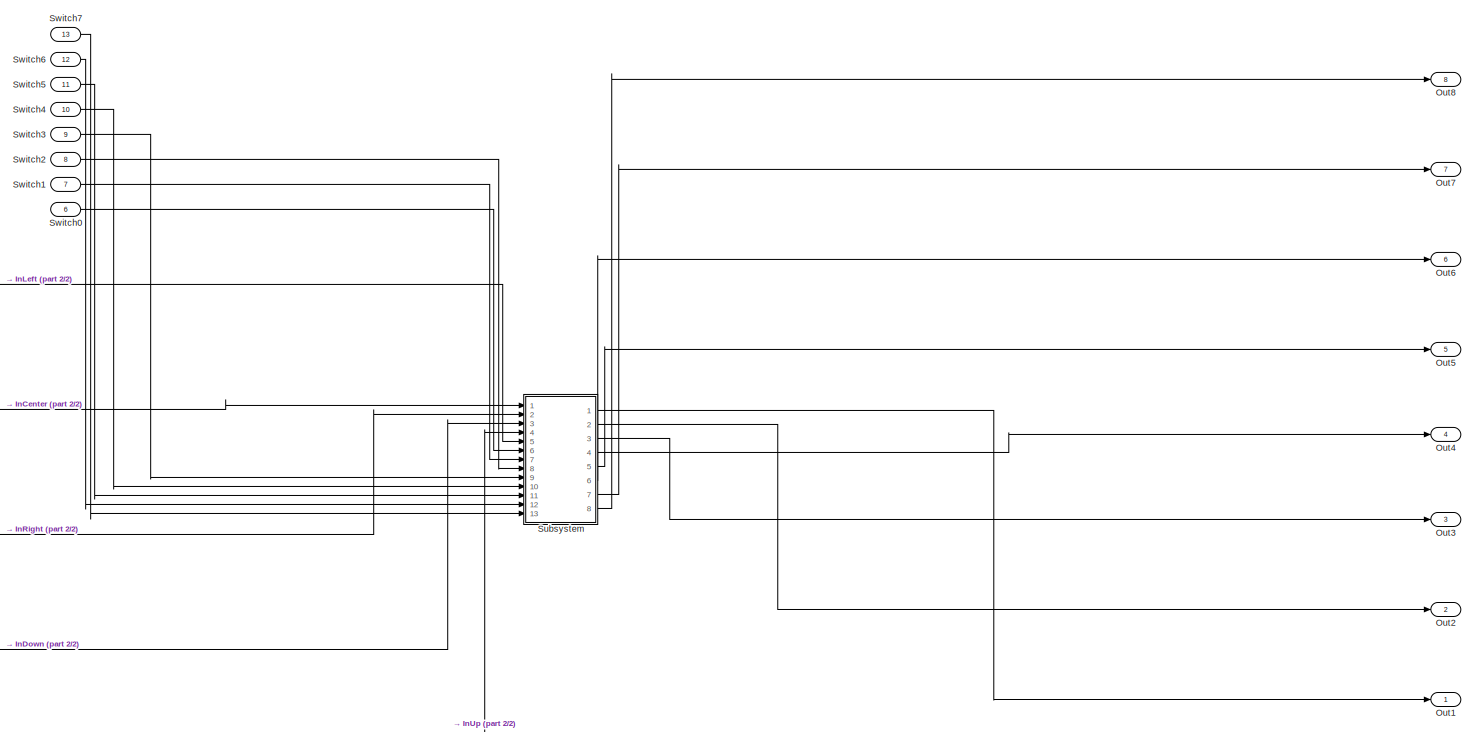
[diagram: root canvas - part 1/2, most of the canvas]
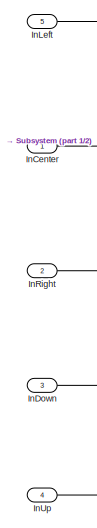
[diagram: root canvas - part 2/2, bottom left region]
MODEL slx_cdc9662e9512
KIND model
BLOCK [Inport] InCenter
  IconDisplay = Port number
BLOCK [Inport] InDown
  IconDisplay = Port number
  Port = 3
BLOCK [Inport] InLeft
  IconDisplay = Port number
  Port = 5
BLOCK [Inport] InRight
  IconDisplay = Port number
  Port = 2
BLOCK [Inport] InUp
  IconDisplay = Port number
  Port = 4
BLOCK [Outport] Out1
  IconDisplay = Port number
BLOCK [Outport] Out2
  IconDisplay = Port number
  Port = 2
BLOCK [Outport] Out3
  IconDisplay = Port number
  Port = 3
BLOCK [Outport] Out4
  IconDisplay = Port number
  Port = 4
BLOCK [Outport] Out5
  IconDisplay = Port number
  Port = 5
BLOCK [Outport] Out6
  IconDisplay = Port number
  Port = 6
BLOCK [Outport] Out7
  IconDisplay = Port number
  Port = 7
BLOCK [Outport] Out8
  IconDisplay = Port number
  Port = 8
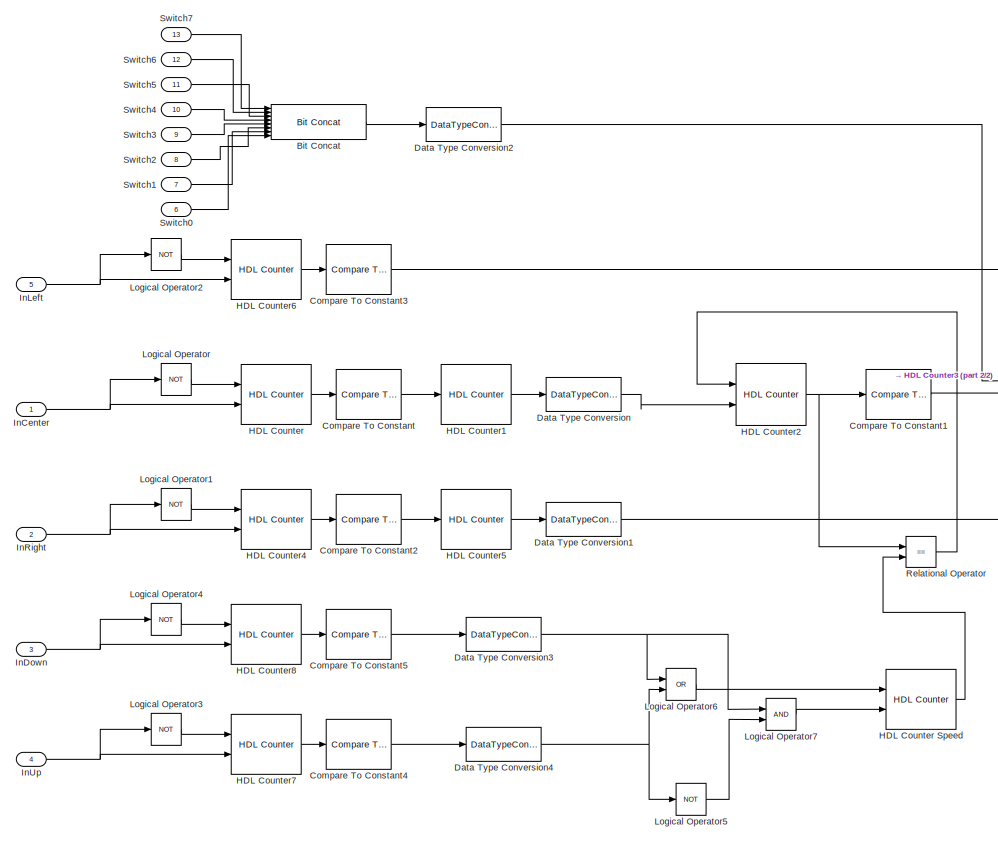
[diagram: Subsystem - part 1/2, left side, full height]
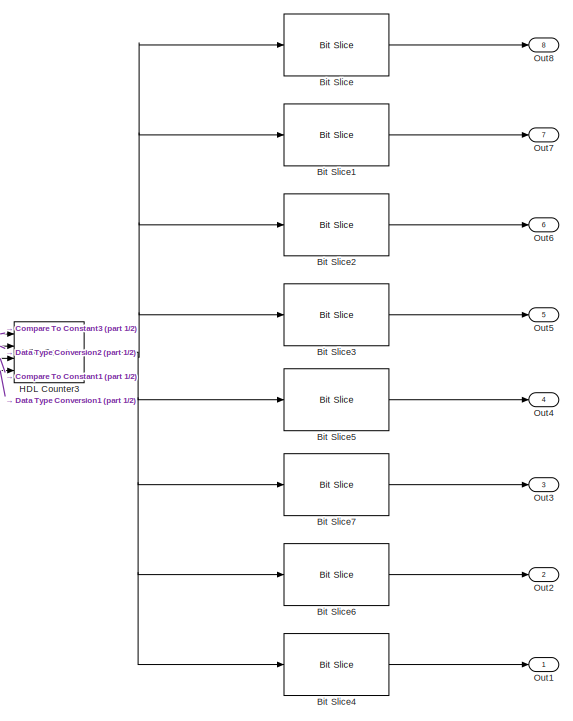
[diagram: Subsystem - part 2/2, right side, full height]
BLOCK [SubSystem] Subsystem
  Ports = [13, 8]
  RequestExecContextInheritance = off
  TreatAsAtomicUnit = on
BLOCK [Reference] Subsystem/Bit Concat  REF=hdlsllib/HDL Operations/Bit Concat
  Ports = [8, 1]
  SourceBlock = hdlsllib/HDL Operations/Bit Concat
  SourceType = Bit Concat
  numInputs = 8
BLOCK [Reference] Subsystem/Bit Slice  REF=hdlsllib/HDL Operations/Bit Slice
  Ports = [1, 1]
  SourceBlock = hdlsllib/HDL Operations/Bit Slice
  SourceType = Bit Slice
  lidx = 7
  ridx = 7
BLOCK [Reference] Subsystem/Bit Slice1  REF=hdlsllib/HDL Operations/Bit Slice
  Ports = [1, 1]
  SourceBlock = hdlsllib/HDL Operations/Bit Slice
  SourceType = Bit Slice
  lidx = 6
  ridx = 6
BLOCK [Reference] Subsystem/Bit Slice2  REF=hdlsllib/HDL Operations/Bit Slice
  Ports = [1, 1]
  SourceBlock = hdlsllib/HDL Operations/Bit Slice
  SourceType = Bit Slice
  lidx = 5
  ridx = 5
BLOCK [Reference] Subsystem/Bit Slice3  REF=hdlsllib/HDL Operations/Bit Slice
  Ports = [1, 1]
  SourceBlock = hdlsllib/HDL Operations/Bit Slice
  SourceType = Bit Slice
  lidx = 4
  ridx = 4
BLOCK [Reference] Subsystem/Bit Slice4  REF=hdlsllib/HDL Operations/Bit Slice
  Ports = [1, 1]
  SourceBlock = hdlsllib/HDL Operations/Bit Slice
  SourceType = Bit Slice
  lidx = 0
  ridx = 0
BLOCK [Reference] Subsystem/Bit Slice5  REF=hdlsllib/HDL Operations/Bit Slice
  Ports = [1, 1]
  SourceBlock = hdlsllib/HDL Operations/Bit Slice
  SourceType = Bit Slice
  lidx = 3
  ridx = 3
BLOCK [Reference] Subsystem/Bit Slice6  REF=hdlsllib/HDL Operations/Bit Slice
  Ports = [1, 1]
  SourceBlock = hdlsllib/HDL Operations/Bit Slice
  SourceType = Bit Slice
  lidx = 1
  ridx = 1
BLOCK [Reference] Subsystem/Bit Slice7  REF=hdlsllib/HDL Operations/Bit Slice
  Ports = [1, 1]
  SourceBlock = hdlsllib/HDL Operations/Bit Slice
  SourceType = Bit Slice
  lidx = 2
  ridx = 2
BLOCK [Reference] Subsystem/Compare To Constant  REF=simulink/Logic and Bit
Operations/Compare
To Constant
  OutDataTypeStr = boolean
  Ports = [1, 1]
  SourceBlock = simulink/Logic and Bit\nOperations/Compare\nTo Constant
  SourceType = Compare To Constant
  ZeroCross = on
  const = 12500000
  relop = ==
BLOCK [Reference] Subsystem/Compare To Constant1  REF=simulink/Logic and Bit
Operations/Compare
To Constant
  OutDataTypeStr = boolean
  Ports = [1, 1]
  SourceBlock = simulink/Logic and Bit\nOperations/Compare\nTo Constant
  SourceType = Compare To Constant
  ZeroCross = on
  const = 0
  relop = ==
BLOCK [Reference] Subsystem/Compare To Constant2  REF=simulink/Logic and Bit
Operations/Compare
To Constant
  OutDataTypeStr = boolean
  Ports = [1, 1]
  SourceBlock = simulink/Logic and Bit\nOperations/Compare\nTo Constant
  SourceType = Compare To Constant
  ZeroCross = on
  const = 12500000
  relop = ==
BLOCK [Reference] Subsystem/Compare To Constant3  REF=simulink/Logic and Bit
Operations/Compare
To Constant
  OutDataTypeStr = boolean
  Ports = [1, 1]
  SourceBlock = simulink/Logic and Bit\nOperations/Compare\nTo Constant
  SourceType = Compare To Constant
  ZeroCross = on
  const = 12500000
  relop = ==
BLOCK [Reference] Subsystem/Compare To Constant4  REF=simulink/Logic and Bit
Operations/Compare
To Constant
  OutDataTypeStr = boolean
  Ports = [1, 1]
  SourceBlock = simulink/Logic and Bit\nOperations/Compare\nTo Constant
  SourceType = Compare To Constant
  ZeroCross = on
  const = 12500000
  relop = ==
BLOCK [Reference] Subsystem/Compare To Constant5  REF=simulink/Logic and Bit
Operations/Compare
To Constant
  OutDataTypeStr = boolean
  Ports = [1, 1]
  SourceBlock = simulink/Logic and Bit\nOperations/Compare\nTo Constant
  SourceType = Compare To Constant
  ZeroCross = on
  const = 12500000
  relop = ==
BLOCK [DataTypeConversion] Subsystem/Data Type Conversion
  OutDataTypeStr = boolean
  RndMeth = Floor
  SaturateOnIntegerOverflow = off
BLOCK [DataTypeConversion] Subsystem/Data Type Conversion1
  OutDataTypeStr = boolean
  RndMeth = Floor
  SaturateOnIntegerOverflow = off
BLOCK [DataTypeConversion] Subsystem/Data Type Conversion2
  OutDataTypeStr = uint8
  RndMeth = Floor
  SaturateOnIntegerOverflow = off
BLOCK [DataTypeConversion] Subsystem/Data Type Conversion3
  OutDataTypeStr = boolean
  RndMeth = Floor
  SaturateOnIntegerOverflow = off
BLOCK [DataTypeConversion] Subsystem/Data Type Conversion4
  OutDataTypeStr = boolean
  RndMeth = Floor
  SaturateOnIntegerOverflow = off
BLOCK [Reference] Subsystem/HDL Counter  REF=hdlsllib/HDL Operations/HDL Counter
  CountDataType = Unsigned
  CountDirPort = off
  CountEnbPort = on
  CountFracLen = 0
  CountFrom = 0
  CountFromType = Initial value
  CountInit = 0
  CountLoadPort = off
  CountMax = 50000000
  CountResetPort = on
  CountSampTime = 1
  CountStep = 1
  CountType = Count limited
  CountWordLen = 32
  Ports = [2, 1]
  SourceBlock = hdlsllib/HDL Operations/HDL Counter
  SourceType = HDL Counter
BLOCK [Reference] Subsystem/HDL Counter Speed  REF=hdlsllib/HDL Operations/HDL Counter
  CountDataType = Unsigned
  CountDirPort = on
  CountEnbPort = on
  CountFracLen = 0
  CountFrom = 25000000
  CountFromType = Initial value
  CountInit = 25000000
  CountLoadPort = off
  CountMax = 50000000
  CountResetPort = off
  CountSampTime = 1
  CountStep = 1000000
  CountType = Free running
  CountWordLen = 32
  Ports = [2, 1]
  SourceBlock = hdlsllib/HDL Operations/HDL Counter
  SourceType = HDL Counter
BLOCK [Reference] Subsystem/HDL Counter1  REF=hdlsllib/HDL Operations/HDL Counter
  CountDataType = Unsigned
  CountDirPort = off
  CountEnbPort = on
  CountFracLen = 0
  CountFrom = 0
  CountFromType = Initial value
  CountInit = 0
  CountLoadPort = off
  CountMax = 100
  CountResetPort = off
  CountSampTime = 1
  CountStep = 1
  CountType = Free running
  CountWordLen = 1
  Ports = [1, 1]
  SourceBlock = hdlsllib/HDL Operations/HDL Counter
  SourceType = HDL Counter
BLOCK [Reference] Subsystem/HDL Counter2  REF=hdlsllib/HDL Operations/HDL Counter
  CountDataType = Unsigned
  CountDirPort = off
  CountEnbPort = on
  CountFracLen = 0
  CountFrom = 0
  CountFromType = Initial value
  CountInit = 0
  CountLoadPort = off
  CountMax = 25000000
  CountResetPort = on
  CountSampTime = 1
  CountStep = 1
  CountType = Free running
  CountWordLen = 32
  Ports = [2, 1]
  SourceBlock = hdlsllib/HDL Operations/HDL Counter
  SourceType = HDL Counter
BLOCK [Reference] Subsystem/HDL Counter3  REF=hdlsllib/HDL Operations/HDL Counter
  CountDataType = Unsigned
  CountDirPort = on
  CountEnbPort = on
  CountFracLen = 0
  CountFrom = 0
  CountFromType = Initial value
  CountInit = 0
  CountLoadPort = on
  CountMax = 25000000
  CountResetPort = off
  CountSampTime = 1
  CountStep = 1
  CountType = Free running
  CountWordLen = 8
  Ports = [4, 1]
  SourceBlock = hdlsllib/HDL Operations/HDL Counter
  SourceType = HDL Counter
BLOCK [Reference] Subsystem/HDL Counter4  REF=hdlsllib/HDL Operations/HDL Counter
  CountDataType = Unsigned
  CountDirPort = off
  CountEnbPort = on
  CountFracLen = 0
  CountFrom = 0
  CountFromType = Initial value
  CountInit = 0
  CountLoadPort = off
  CountMax = 50000000
  CountResetPort = on
  CountSampTime = 1
  CountStep = 1
  CountType = Count limited
  CountWordLen = 32
  Ports = [2, 1]
  SourceBlock = hdlsllib/HDL Operations/HDL Counter
  SourceType = HDL Counter
BLOCK [Reference] Subsystem/HDL Counter5  REF=hdlsllib/HDL Operations/HDL Counter
  CountDataType = Unsigned
  CountDirPort = off
  CountEnbPort = on
  CountFracLen = 0
  CountFrom = 1
  CountFromType = Initial value
  CountInit = 1
  CountLoadPort = off
  CountMax = 100
  CountResetPort = off
  CountSampTime = 1
  CountStep = 1
  CountType = Free running
  CountWordLen = 1
  Ports = [1, 1]
  SourceBlock = hdlsllib/HDL Operations/HDL Counter
  SourceType = HDL Counter
BLOCK [Reference] Subsystem/HDL Counter6  REF=hdlsllib/HDL Operations/HDL Counter
  CountDataType = Unsigned
  CountDirPort = off
  CountEnbPort = on
  CountFracLen = 0
  CountFrom = 0
  CountFromType = Initial value
  CountInit = 0
  CountLoadPort = off
  CountMax = 50000000
  CountResetPort = on
  CountSampTime = 1
  CountStep = 1
  CountType = Count limited
  CountWordLen = 32
  Ports = [2, 1]
  SourceBlock = hdlsllib/HDL Operations/HDL Counter
  SourceType = HDL Counter
BLOCK [Reference] Subsystem/HDL Counter7  REF=hdlsllib/HDL Operations/HDL Counter
  CountDataType = Unsigned
  CountDirPort = off
  CountEnbPort = on
  CountFracLen = 0
  CountFrom = 0
  CountFromType = Initial value
  CountInit = 0
  CountLoadPort = off
  CountMax = 50000000
  CountResetPort = on
  CountSampTime = 1
  CountStep = 1
  CountType = Count limited
  CountWordLen = 32
  Ports = [2, 1]
  SourceBlock = hdlsllib/HDL Operations/HDL Counter
  SourceType = HDL Counter
BLOCK [Reference] Subsystem/HDL Counter8  REF=hdlsllib/HDL Operations/HDL Counter
  CountDataType = Unsigned
  CountDirPort = off
  CountEnbPort = on
  CountFracLen = 0
  CountFrom = 0
  CountFromType = Initial value
  CountInit = 0
  CountLoadPort = off
  CountMax = 50000000
  CountResetPort = on
  CountSampTime = 1
  CountStep = 1
  CountType = Count limited
  CountWordLen = 32
  Ports = [2, 1]
  SourceBlock = hdlsllib/HDL Operations/HDL Counter
  SourceType = HDL Counter
BLOCK [Inport] Subsystem/InCenter
  IconDisplay = Port number
BLOCK [Inport] Subsystem/InDown
  IconDisplay = Port number
  Port = 3
BLOCK [Inport] Subsystem/InLeft
  IconDisplay = Port number
  Port = 5
BLOCK [Inport] Subsystem/InRight
  IconDisplay = Port number
  Port = 2
BLOCK [Inport] Subsystem/InUp
  IconDisplay = Port number
  Port = 4
BLOCK [Logic] Subsystem/Logical Operator
  AllPortsSameDT = off
  IconShape = distinctive
  Operator = NOT
  OutDataTypeStr = boolean
  Ports = [1, 1]
BLOCK [Logic] Subsystem/Logical Operator1
  AllPortsSameDT = off
  IconShape = distinctive
  Operator = NOT
  OutDataTypeStr = boolean
  Ports = [1, 1]
BLOCK [Logic] Subsystem/Logical Operator2
  AllPortsSameDT = off
  IconShape = distinctive
  Operator = NOT
  OutDataTypeStr = boolean
  Ports = [1, 1]
BLOCK [Logic] Subsystem/Logical Operator3
  AllPortsSameDT = off
  IconShape = distinctive
  Operator = NOT
  OutDataTypeStr = boolean
  Ports = [1, 1]
BLOCK [Logic] Subsystem/Logical Operator4
  AllPortsSameDT = off
  IconShape = distinctive
  Operator = NOT
  OutDataTypeStr = boolean
  Ports = [1, 1]
BLOCK [Logic] Subsystem/Logical Operator5
  AllPortsSameDT = off
  IconShape = distinctive
  Operator = NOT
  OutDataTypeStr = boolean
  Ports = [1, 1]
BLOCK [Logic] Subsystem/Logical Operator6
  AllPortsSameDT = off
  IconShape = distinctive
  Operator = OR
  OutDataTypeStr = boolean
  Ports = [2, 1]
BLOCK [Logic] Subsystem/Logical Operator7
  AllPortsSameDT = off
  IconShape = distinctive
  OutDataTypeStr = boolean
  Ports = [2, 1]
BLOCK [Outport] Subsystem/Out1
  IconDisplay = Port number
BLOCK [Outport] Subsystem/Out2
  IconDisplay = Port number
  Port = 2
BLOCK [Outport] Subsystem/Out3
  IconDisplay = Port number
  Port = 3
BLOCK [Outport] Subsystem/Out4
  IconDisplay = Port number
  Port = 4
BLOCK [Outport] Subsystem/Out5
  IconDisplay = Port number
  Port = 5
BLOCK [Outport] Subsystem/Out6
  IconDisplay = Port number
  Port = 6
BLOCK [Outport] Subsystem/Out7
  IconDisplay = Port number
  Port = 7
BLOCK [Outport] Subsystem/Out8
  IconDisplay = Port number
  Port = 8
BLOCK [RelationalOperator] Subsystem/Relational Operator
  InputSameDT = off
  Operator = ==
  OutDataTypeStr = boolean
  Ports = [2, 1]
BLOCK [Inport] Subsystem/Switch0
  IconDisplay = Port number
  OutDataTypeStr = boolean
  Port = 6
BLOCK [Inport] Subsystem/Switch1
  IconDisplay = Port number
  OutDataTypeStr = boolean
  Port = 7
BLOCK [Inport] Subsystem/Switch2
  IconDisplay = Port number
  OutDataTypeStr = boolean
  Port = 8
BLOCK [Inport] Subsystem/Switch3
  IconDisplay = Port number
  OutDataTypeStr = boolean
  Port = 9
BLOCK [Inport] Subsystem/Switch4
  IconDisplay = Port number
  OutDataTypeStr = boolean
  Port = 10
BLOCK [Inport] Subsystem/Switch5
  IconDisplay = Port number
  OutDataTypeStr = boolean
  Port = 11
BLOCK [Inport] Subsystem/Switch6
  IconDisplay = Port number
  OutDataTypeStr = boolean
  Port = 12
BLOCK [Inport] Subsystem/Switch7
  IconDisplay = Port number
  OutDataTypeStr = boolean
  Port = 13
BLOCK [Inport] Switch0
  IconDisplay = Port number
  OutDataTypeStr = boolean
  Port = 6
BLOCK [Inport] Switch1
  IconDisplay = Port number
  OutDataTypeStr = boolean
  Port = 7
BLOCK [Inport] Switch2
  IconDisplay = Port number
  OutDataTypeStr = boolean
  Port = 8
BLOCK [Inport] Switch3
  IconDisplay = Port number
  OutDataTypeStr = boolean
  Port = 9
BLOCK [Inport] Switch4
  IconDisplay = Port number
  OutDataTypeStr = boolean
  Port = 10
BLOCK [Inport] Switch5
  IconDisplay = Port number
  OutDataTypeStr = boolean
  Port = 11
BLOCK [Inport] Switch6
  IconDisplay = Port number
  OutDataTypeStr = boolean
  Port = 12
BLOCK [Inport] Switch7
  IconDisplay = Port number
  OutDataTypeStr = boolean
  Port = 13
LINE InCenter:1 -> Subsystem:1
LINE InDown:1 -> Subsystem:3
LINE InLeft:1 -> Subsystem:5
LINE InRight:1 -> Subsystem:2
LINE InUp:1 -> Subsystem:4
LINE Subsystem/Bit Concat:1 -> Subsystem/Data Type Conversion2:1
LINE Subsystem/Bit Slice1:1 -> Subsystem/Out7:1
LINE Subsystem/Bit Slice2:1 -> Subsystem/Out6:1
LINE Subsystem/Bit Slice3:1 -> Subsystem/Out5:1
LINE Subsystem/Bit Slice4:1 -> Subsystem/Out1:1
LINE Subsystem/Bit Slice5:1 -> Subsystem/Out4:1
LINE Subsystem/Bit Slice6:1 -> Subsystem/Out2:1
LINE Subsystem/Bit Slice7:1 -> Subsystem/Out3:1
LINE Subsystem/Bit Slice:1 -> Subsystem/Out8:1
LINE Subsystem/Compare To Constant1:1 -> Subsystem/HDL Counter3:3
LINE Subsystem/Compare To Constant2:1 -> Subsystem/HDL Counter5:1
LINE Subsystem/Compare To Constant3:1 -> Subsystem/HDL Counter3:1
LINE Subsystem/Compare To Constant4:1 -> Subsystem/Data Type Conversion4:1
LINE Subsystem/Compare To Constant5:1 -> Subsystem/Data Type Conversion3:1
LINE Subsystem/Compare To Constant:1 -> Subsystem/HDL Counter1:1
LINE Subsystem/Data Type Conversion1:1 -> Subsystem/HDL Counter3:4
LINE Subsystem/Data Type Conversion2:1 -> Subsystem/HDL Counter3:2
NET Subsystem/Data Type Conversion3:1 -> Subsystem/Logical Operator6:1, Subsystem/Logical Operator7:1
NET Subsystem/Data Type Conversion4:1 -> Subsystem/Logical Operator5:1, Subsystem/Logical Operator6:2
LINE Subsystem/Data Type Conversion:1 -> Subsystem/HDL Counter2:2
LINE Subsystem/HDL Counter Speed:1 -> Subsystem/Relational Operator:2
LINE Subsystem/HDL Counter1:1 -> Subsystem/Data Type Conversion:1
NET Subsystem/HDL Counter2:1 -> Subsystem/Compare To Constant1:1, Subsystem/Relational Operator:1
NET Subsystem/HDL Counter3:1 -> Subsystem/Bit Slice1:1, Subsystem/Bit Slice2:1, Subsystem/Bit Slice3:1, Subsystem/Bit Slice4:1, Subsystem/Bit Slice5:1, Subsystem/Bit Slice6:1, Subsystem/Bit Slice7:1, Subsystem/Bit Slice:1
LINE Subsystem/HDL Counter4:1 -> Subsystem/Compare To Constant2:1
LINE Subsystem/HDL Counter5:1 -> Subsystem/Data Type Conversion1:1
LINE Subsystem/HDL Counter6:1 -> Subsystem/Compare To Constant3:1
LINE Subsystem/HDL Counter7:1 -> Subsystem/Compare To Constant4:1
LINE Subsystem/HDL Counter8:1 -> Subsystem/Compare To Constant5:1
LINE Subsystem/HDL Counter:1 -> Subsystem/Compare To Constant:1
NET Subsystem/InCenter:1 -> Subsystem/HDL Counter:2, Subsystem/Logical Operator:1
NET Subsystem/InDown:1 -> Subsystem/HDL Counter8:2, Subsystem/Logical Operator4:1
NET Subsystem/InLeft:1 -> Subsystem/HDL Counter6:2, Subsystem/Logical Operator2:1
NET Subsystem/InRight:1 -> Subsystem/HDL Counter4:2, Subsystem/Logical Operator1:1
NET Subsystem/InUp:1 -> Subsystem/HDL Counter7:2, Subsystem/Logical Operator3:1
LINE Subsystem/Logical Operator1:1 -> Subsystem/HDL Counter4:1
LINE Subsystem/Logical Operator2:1 -> Subsystem/HDL Counter6:1
LINE Subsystem/Logical Operator3:1 -> Subsystem/HDL Counter7:1
LINE Subsystem/Logical Operator4:1 -> Subsystem/HDL Counter8:1
LINE Subsystem/Logical Operator5:1 -> Subsystem/Logical Operator7:2
LINE Subsystem/Logical Operator6:1 -> Subsystem/HDL Counter Speed:1
LINE Subsystem/Logical Operator7:1 -> Subsystem/HDL Counter Speed:2
LINE Subsystem/Logical Operator:1 -> Subsystem/HDL Counter:1
LINE Subsystem/Relational Operator:1 -> Subsystem/HDL Counter2:1
LINE Subsystem/Switch0:1 -> Subsystem/Bit Concat:8
LINE Subsystem/Switch1:1 -> Subsystem/Bit Concat:7
LINE Subsystem/Switch2:1 -> Subsystem/Bit Concat:6
LINE Subsystem/Switch3:1 -> Subsystem/Bit Concat:5
LINE Subsystem/Switch4:1 -> Subsystem/Bit Concat:4
LINE Subsystem/Switch5:1 -> Subsystem/Bit Concat:3
LINE Subsystem/Switch6:1 -> Subsystem/Bit Concat:2
LINE Subsystem/Switch7:1 -> Subsystem/Bit Concat:1
LINE Subsystem:1 -> Out1:1
LINE Subsystem:2 -> Out2:1
LINE Subsystem:3 -> Out3:1
LINE Subsystem:4 -> Out4:1
LINE Subsystem:5 -> Out5:1
LINE Subsystem:6 -> Out6:1
LINE Subsystem:7 -> Out7:1
LINE Subsystem:8 -> Out8:1
LINE Switch0:1 -> Subsystem:6
LINE Switch1:1 -> Subsystem:7
LINE Switch2:1 -> Subsystem:8
LINE Switch3:1 -> Subsystem:9
LINE Switch4:1 -> Subsystem:10
LINE Switch5:1 -> Subsystem:11
LINE Switch6:1 -> Subsystem:12
LINE Switch7:1 -> Subsystem:13
note: NET lines group one-source signal fan-out (src -> all destinations, sorted); 1:1 wires keep LINE
